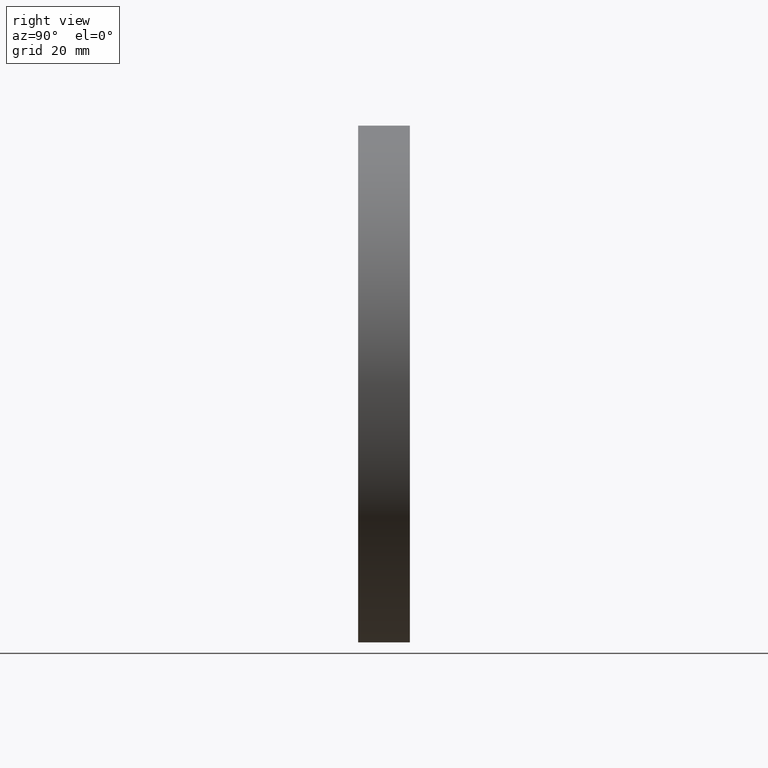
[diagram: clean part render]
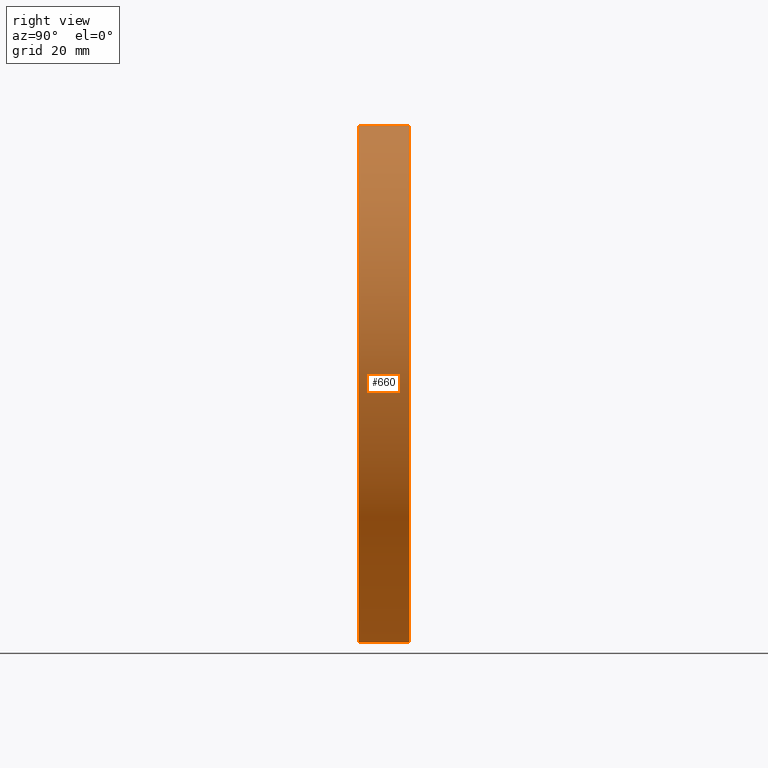
[diagram: same view with one face highlighted and labeled with its STEP entity id]
A machine part, right view. The second image highlights one B-rep face of the part: STEP entity #660.
In plain terms, the highlighted cylindrical surface (partial cylindrical patch) has radius 50 mm, axis along (-0, -1, -0).
Its self-contained STEP definition (entity closure, byte-faithful):
#567 = DIRECTION ( 'NONE',  ( 0.0000000000000000000, 0.0000000000000000000, -1.000000000000000000 ) ) ;
#602 = DIRECTION ( 'NONE',  ( 0.0000000000000000000, 1.000000000000000000, 0.0000000000000000000 ) ) ;
#652 = DIRECTION ( 'NONE',  ( -0.0000000000000000000, -1.000000000000000000, -0.0000000000000000000 ) ) ;
#660 = ADVANCED_FACE ( 'NONE', ( #3705 ), #11198, .T. ) ;
#852 = VECTOR ( 'NONE', #12634, 1000.000000000000000 ) ;
#1152 = LINE ( 'NONE', #1857, #852 ) ;
#1162 = AXIS2_PLACEMENT_3D ( 'NONE', #6419, #652, #567 ) ;
#1398 = EDGE_LOOP ( 'NONE', ( #9844, #3364, #5772, #4215 ) ) ;
#1783 = CARTESIAN_POINT ( 'NONE',  ( 6.123233995736766100E-015, 10.00000000000000000, 50.00000000000000000 ) ) ;
#1857 = CARTESIAN_POINT ( 'NONE',  ( 0.0000000000000000000, 10.00000000000000000, -50.00000000000000000 ) ) ;
#2058 = EDGE_CURVE ( 'NONE', #8873, #11810, #8447, .T. ) ;
#2257 = EDGE_CURVE ( 'NONE', #11810, #3360, #4149, .T. ) ;
#2582 = AXIS2_PLACEMENT_3D ( 'NONE', #11438, #11514, #5677 ) ;
#2875 = VERTEX_POINT ( 'NONE', #4904 ) ;
#3360 = VERTEX_POINT ( 'NONE', #10632 ) ;
#3364 = ORIENTED_EDGE ( 'NONE', *, *, #2058, .T. ) ;
#3705 = FACE_OUTER_BOUND ( 'NONE', #1398, .T. ) ;
#4149 = CIRCLE ( 'NONE', #10761, 50.00000000000000000 ) ;
#4215 = ORIENTED_EDGE ( 'NONE', *, *, #10284, .F. ) ;
#4434 = EDGE_CURVE ( 'NONE', #8873, #2875, #7788, .T. ) ;
#4584 = CARTESIAN_POINT ( 'NONE',  ( 0.0000000000000000000, 0.0000000000000000000, 0.0000000000000000000 ) ) ;
#4904 = CARTESIAN_POINT ( 'NONE',  ( 0.0000000000000000000, 10.00000000000000000, -50.00000000000000000 ) ) ;
#4988 = CARTESIAN_POINT ( 'NONE',  ( 6.123233995736766100E-015, 10.00000000000000000, 50.00000000000000000 ) ) ;
#5232 = VECTOR ( 'NONE', #9534, 1000.000000000000000 ) ;
#5677 = DIRECTION ( 'NONE',  ( 0.0000000000000000000, 0.0000000000000000000, 1.000000000000000000 ) ) ;
#5772 = ORIENTED_EDGE ( 'NONE', *, *, #2257, .T. ) ;
#6419 = CARTESIAN_POINT ( 'NONE',  ( 0.0000000000000000000, 10.00000000000000000, 0.0000000000000000000 ) ) ;
#7491 = CARTESIAN_POINT ( 'NONE',  ( 6.123233995736766100E-015, 0.0000000000000000000, 50.00000000000000000 ) ) ;
#7788 = CIRCLE ( 'NONE', #2582, 50.00000000000000000 ) ;
#8447 = LINE ( 'NONE', #1783, #5232 ) ;
#8873 = VERTEX_POINT ( 'NONE', #4988 ) ;
#9534 = DIRECTION ( 'NONE',  ( -0.0000000000000000000, -1.000000000000000000, -0.0000000000000000000 ) ) ;
#9844 = ORIENTED_EDGE ( 'NONE', *, *, #4434, .F. ) ;
#10284 = EDGE_CURVE ( 'NONE', #2875, #3360, #1152, .T. ) ;
#10327 = DIRECTION ( 'NONE',  ( 0.0000000000000000000, 0.0000000000000000000, 1.000000000000000000 ) ) ;
#10632 = CARTESIAN_POINT ( 'NONE',  ( 0.0000000000000000000, 0.0000000000000000000, -50.00000000000000000 ) ) ;
#10761 = AXIS2_PLACEMENT_3D ( 'NONE', #4584, #602, #10327 ) ;
#11198 = CYLINDRICAL_SURFACE ( 'NONE', #1162, 50.00000000000000000 ) ;
#11438 = CARTESIAN_POINT ( 'NONE',  ( 0.0000000000000000000, 10.00000000000000000, 0.0000000000000000000 ) ) ;
#11514 = DIRECTION ( 'NONE',  ( 0.0000000000000000000, 1.000000000000000000, 0.0000000000000000000 ) ) ;
#11810 = VERTEX_POINT ( 'NONE', #7491 ) ;
#12634 = DIRECTION ( 'NONE',  ( -0.0000000000000000000, -1.000000000000000000, -0.0000000000000000000 ) ) ;